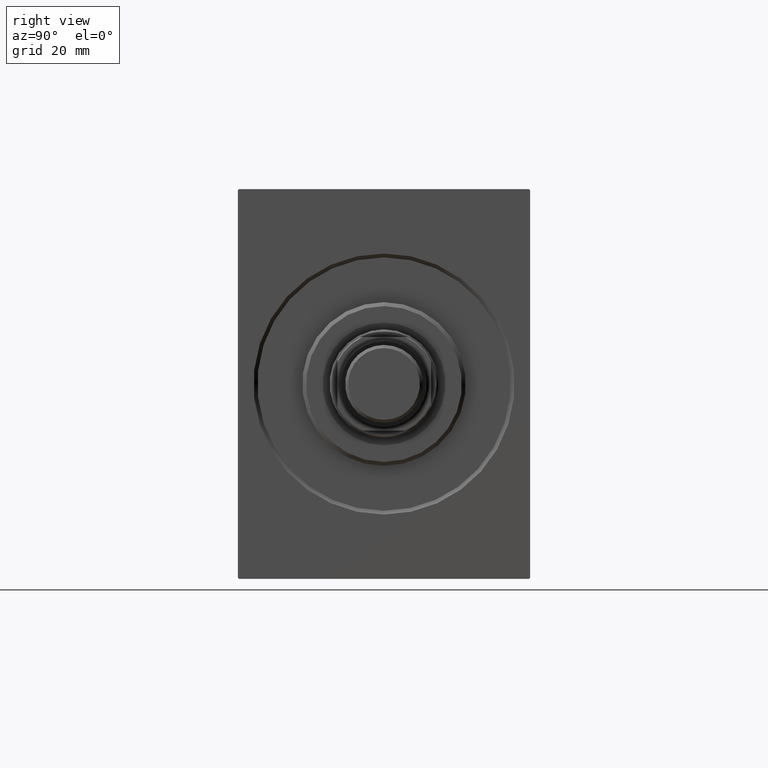
[diagram: clean part render]
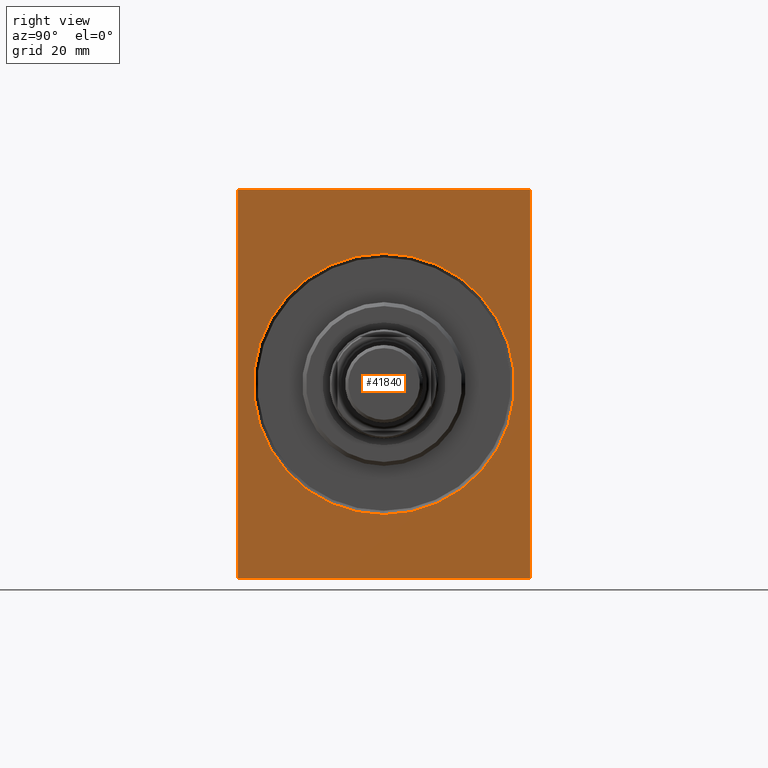
[diagram: same view with one face highlighted and labeled with its STEP entity id]
A machine part, right view. The second image highlights one B-rep face of the part: STEP entity #41840.
In plain terms, the highlighted planar face has unit normal (-1, 0, 0).
Its self-contained STEP definition (entity closure, byte-faithful):
#140 = VERTEX_POINT ( 'NONE', #16409 ) ;
#2258 = CARTESIAN_POINT ( 'NONE',  ( 0.000000000000000000, -37.50000000000000000, -50.00000000000001421 ) ) ;
#2308 = ORIENTED_EDGE ( 'NONE', *, *, #17941, .F. ) ;
#2671 = CARTESIAN_POINT ( 'NONE',  ( 0.000000000000000000, 37.49999999999999289, 50.00000000000001421 ) ) ;
#2966 = LINE ( 'NONE', #20285, #15401 ) ;
#3167 = ORIENTED_EDGE ( 'NONE', *, *, #30720, .T. ) ;
#3634 = CARTESIAN_POINT ( 'NONE',  ( 0.000000000000000000, 0.000000000000000000, 0.000000000000000000 ) ) ;
#3845 = EDGE_CURVE ( 'NONE', #14446, #15892, #28868, .T. ) ;
#4148 = EDGE_CURVE ( 'NONE', #22644, #42356, #5769, .T. ) ;
#4294 = VERTEX_POINT ( 'NONE', #25940 ) ;
#5769 = LINE ( 'NONE', #2258, #35958 ) ;
#6289 = EDGE_CURVE ( 'NONE', #140, #30206, #25477, .T. ) ;
#6502 = DIRECTION ( 'NONE',  ( 1.000000000000000000, 0.000000000000000000, 0.000000000000000000 ) ) ;
#7277 = ORIENTED_EDGE ( 'NONE', *, *, #40049, .F. ) ;
#7384 = PLANE ( 'NONE',  #18290 ) ;
#7641 = CARTESIAN_POINT ( 'NONE',  ( 0.000000000000000000, -37.50000000000000000, 50.00000000000000000 ) ) ;
#7841 = DIRECTION ( 'NONE',  ( 0.000000000000000000, 0.000000000000000000, -1.000000000000000000 ) ) ;
#8055 = CARTESIAN_POINT ( 'NONE',  ( 0.000000000000000000, 0.000000000000000000, 0.000000000000000000 ) ) ;
#8200 = CIRCLE ( 'NONE', #27056, 33.49999999999998579 ) ;
#8324 = VECTOR ( 'NONE', #12324, 1000.000000000000114 ) ;
#8357 = CARTESIAN_POINT ( 'NONE',  ( 0.000000000000000000, 37.19999999999998863, -50.00000000000000711 ) ) ;
#9802 = AXIS2_PLACEMENT_3D ( 'NONE', #3634, #13513, #29966 ) ;
#10142 = VERTEX_POINT ( 'NONE', #32341 ) ;
#10457 = DIRECTION ( 'NONE',  ( 0.000000000000000000, 0.000000000000000000, -1.000000000000000000 ) ) ;
#11766 = CARTESIAN_POINT ( 'NONE',  ( 0.000000000000000000, -37.50000000000000000, 49.69999999999998153 ) ) ;
#12324 = DIRECTION ( 'NONE',  ( -0.000000000000000000, -0.7071067811865474617, 0.7071067811865474617 ) ) ;
#13323 = CARTESIAN_POINT ( 'NONE',  ( 0.000000000000000000, -37.19999999999997442, -50.00000000000001421 ) ) ;
#13513 = DIRECTION ( 'NONE',  ( 1.000000000000000000, 0.000000000000000000, 0.000000000000000000 ) ) ;
#13670 = CARTESIAN_POINT ( 'NONE',  ( 0.000000000000000000, 37.19999999999998153, 50.00000000000001421 ) ) ;
#13844 = EDGE_CURVE ( 'NONE', #24915, #30206, #13892, .T. ) ;
#13892 = LINE ( 'NONE', #13670, #37573 ) ;
#14172 = ORIENTED_EDGE ( 'NONE', *, *, #6289, .F. ) ;
#14446 = VERTEX_POINT ( 'NONE', #11766 ) ;
#14743 = CIRCLE ( 'NONE', #9802, 33.49999999999998579 ) ;
#15093 = LINE ( 'NONE', #7641, #35075 ) ;
#15174 = DIRECTION ( 'NONE',  ( 0.000000000000000000, -1.387778780781445182E-16, 1.000000000000000000 ) ) ;
#15401 = VECTOR ( 'NONE', #40272, 1000.000000000000114 ) ;
#15534 = ORIENTED_EDGE ( 'NONE', *, *, #32614, .T. ) ;
#15892 = VERTEX_POINT ( 'NONE', #17011 ) ;
#16255 = LINE ( 'NONE', #19958, #8324 ) ;
#16409 = CARTESIAN_POINT ( 'NONE',  ( 0.000000000000000000, 37.50000000000000711, -49.70000000000000284 ) ) ;
#17011 = CARTESIAN_POINT ( 'NONE',  ( 0.000000000000000000, -37.19999999999996732, 50.00000000000000000 ) ) ;
#17941 = EDGE_CURVE ( 'NONE', #24915, #15892, #36458, .T. ) ;
#18290 = AXIS2_PLACEMENT_3D ( 'NONE', #40738, #6502, #10457 ) ;
#18389 = VECTOR ( 'NONE', #42684, 1000.000000000000114 ) ;
#19454 = EDGE_LOOP ( 'NONE', ( #2308, #30404, #14172, #15534, #39833, #3167, #7277, #19824 ) ) ;
#19824 = ORIENTED_EDGE ( 'NONE', *, *, #3845, .T. ) ;
#19958 = CARTESIAN_POINT ( 'NONE',  ( 0.000000000000000000, -37.19999999999997442, -50.00000000000001421 ) ) ;
#19981 = DIRECTION ( 'NONE',  ( 0.000000000000000000, -1.000000000000000000, -1.850371707708594563E-16 ) ) ;
#20017 = EDGE_CURVE ( 'NONE', #40923, #4294, #8200, .T. ) ;
#20285 = CARTESIAN_POINT ( 'NONE',  ( 0.000000000000000000, 37.50000000000000711, -49.70000000000000284 ) ) ;
#20314 = FACE_OUTER_BOUND ( 'NONE', #19454, .T. ) ;
#21750 = CARTESIAN_POINT ( 'NONE',  ( 0.000000000000000000, 37.50000000000000711, -50.00000000000000711 ) ) ;
#22644 = VERTEX_POINT ( 'NONE', #13323 ) ;
#23614 = VECTOR ( 'NONE', #19981, 1000.000000000000000 ) ;
#24915 = VERTEX_POINT ( 'NONE', #34789 ) ;
#25477 = LINE ( 'NONE', #21750, #36695 ) ;
#25787 = CARTESIAN_POINT ( 'NONE',  ( 0.000000000000000000, -37.50000000000000000, 49.69999999999998153 ) ) ;
#25940 = CARTESIAN_POINT ( 'NONE',  ( 0.000000000000000000, 0.000000000000000000, 33.49999999999998579 ) ) ;
#27056 = AXIS2_PLACEMENT_3D ( 'NONE', #8055, #33739, #7841 ) ;
#27098 = EDGE_LOOP ( 'NONE', ( #39538, #41061 ) ) ;
#28868 = LINE ( 'NONE', #25787, #18389 ) ;
#29966 = DIRECTION ( 'NONE',  ( 0.000000000000000000, 0.000000000000000000, -1.000000000000000000 ) ) ;
#30206 = VERTEX_POINT ( 'NONE', #36539 ) ;
#30404 = ORIENTED_EDGE ( 'NONE', *, *, #13844, .T. ) ;
#30720 = EDGE_CURVE ( 'NONE', #22644, #10142, #16255, .T. ) ;
#30894 = DIRECTION ( 'NONE',  ( 0.000000000000000000, 0.000000000000000000, -1.000000000000000000 ) ) ;
#31901 = DIRECTION ( 'NONE',  ( 0.000000000000000000, 1.000000000000000000, 9.251858538542970348E-17 ) ) ;
#32341 = CARTESIAN_POINT ( 'NONE',  ( 0.000000000000000000, -37.50000000000000000, -49.69999999999999574 ) ) ;
#32614 = EDGE_CURVE ( 'NONE', #140, #42356, #2966, .T. ) ;
#33739 = DIRECTION ( 'NONE',  ( 1.000000000000000000, 0.000000000000000000, 0.000000000000000000 ) ) ;
#34536 = EDGE_CURVE ( 'NONE', #4294, #40923, #14743, .T. ) ;
#34789 = CARTESIAN_POINT ( 'NONE',  ( 0.000000000000000000, 37.19999999999998153, 50.00000000000001421 ) ) ;
#35075 = VECTOR ( 'NONE', #30894, 1000.000000000000000 ) ;
#35958 = VECTOR ( 'NONE', #31901, 1000.000000000000000 ) ;
#36458 = LINE ( 'NONE', #2671, #23614 ) ;
#36539 = CARTESIAN_POINT ( 'NONE',  ( 0.000000000000000000, 37.49999999999999289, 49.70000000000000284 ) ) ;
#36695 = VECTOR ( 'NONE', #15174, 1000.000000000000000 ) ;
#37573 = VECTOR ( 'NONE', #40229, 1000.000000000000114 ) ;
#38807 = CARTESIAN_POINT ( 'NONE',  ( 0.000000000000000000, 4.102566777143632196E-15, -33.49999999999998579 ) ) ;
#39538 = ORIENTED_EDGE ( 'NONE', *, *, #34536, .T. ) ;
#39833 = ORIENTED_EDGE ( 'NONE', *, *, #4148, .F. ) ;
#40049 = EDGE_CURVE ( 'NONE', #14446, #10142, #15093, .T. ) ;
#40229 = DIRECTION ( 'NONE',  ( -0.000000000000000000, 0.7071067811865392461, -0.7071067811865556774 ) ) ;
#40272 = DIRECTION ( 'NONE',  ( 0.000000000000000000, -0.7071067811865556774, -0.7071067811865392461 ) ) ;
#40299 = FACE_BOUND ( 'NONE', #27098, .T. ) ;
#40738 = CARTESIAN_POINT ( 'NONE',  ( 0.000000000000000000, 0.000000000000000000, 0.000000000000000000 ) ) ;
#40923 = VERTEX_POINT ( 'NONE', #38807 ) ;
#41061 = ORIENTED_EDGE ( 'NONE', *, *, #20017, .T. ) ;
#41840 = ADVANCED_FACE ( 'NONE', ( #40299, #20314 ), #7384, .F. ) ;
#42356 = VERTEX_POINT ( 'NONE', #8357 ) ;
#42684 = DIRECTION ( 'NONE',  ( -0.000000000000000000, 0.7071067811865556774, 0.7071067811865392461 ) ) ;